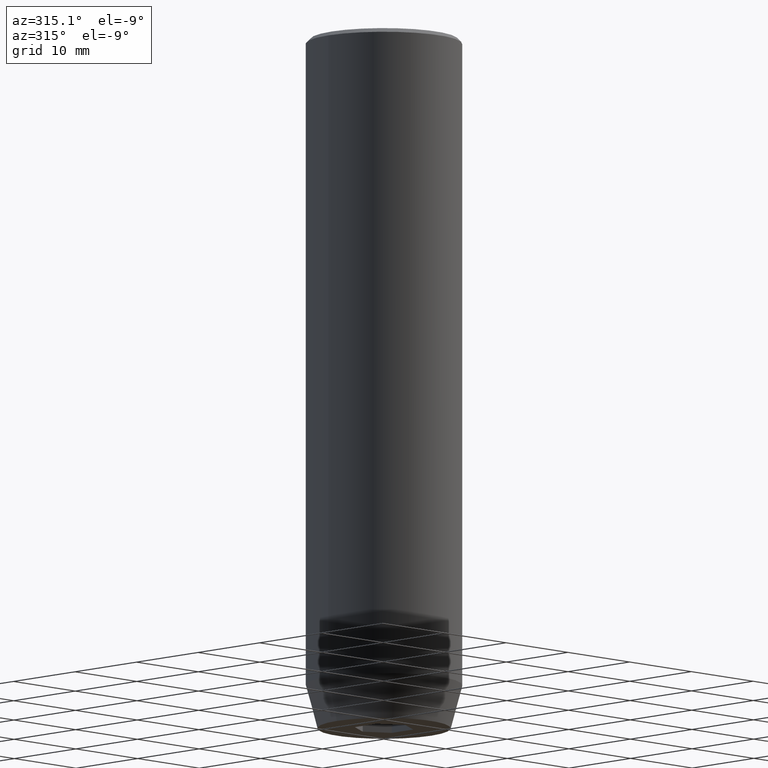
[diagram: clean part render]
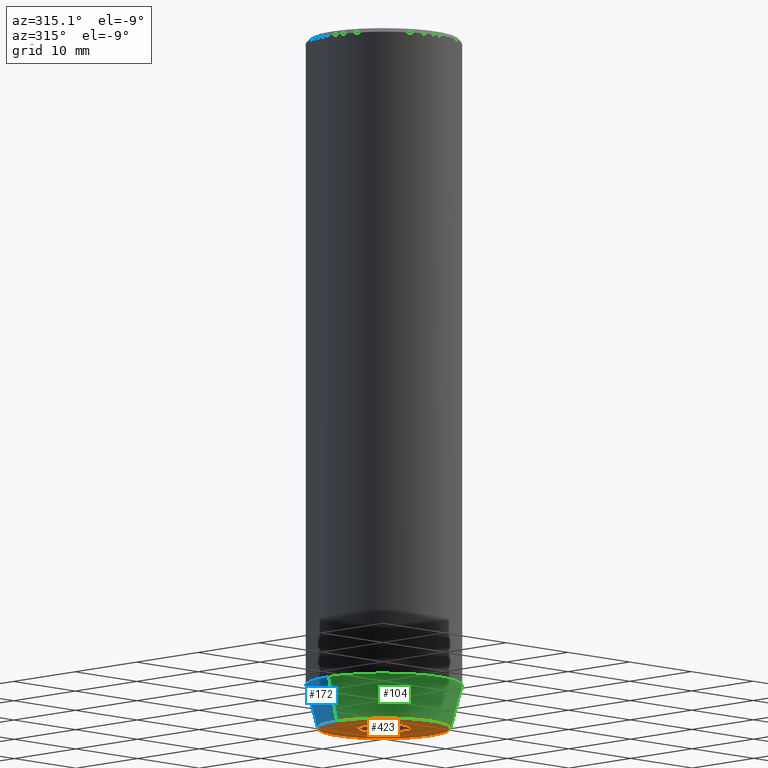
[diagram: same view with three faces highlighted in distinct colors, each labeled with its STEP entity id]
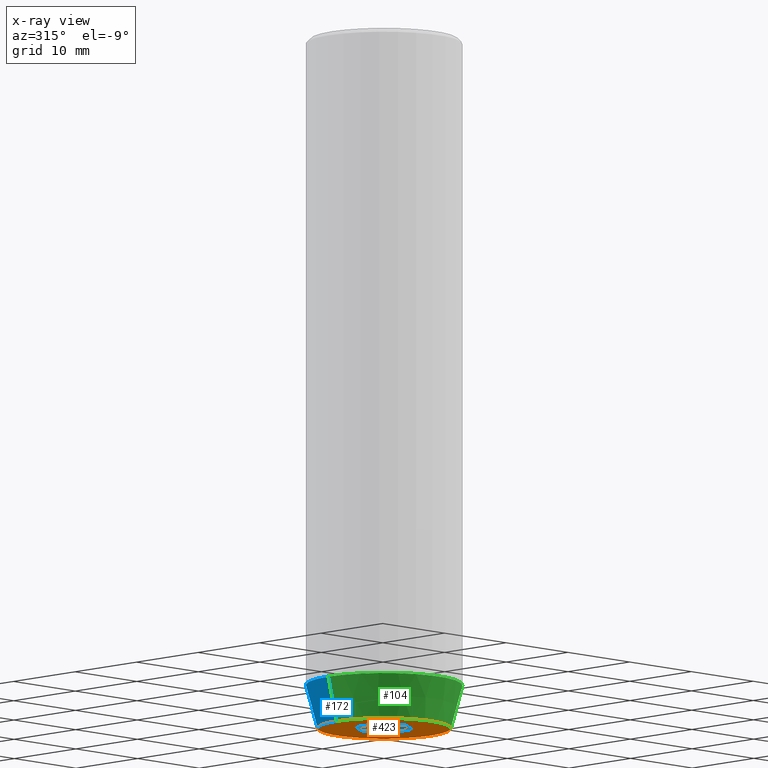
[diagram: x-ray of the same camera — body ghosted, the three highlighted faces saturated]
A machine part, auxiliary view with three faces highlighted in distinct colors.
The next image is the same camera in x-ray (body ghosted, the three faces saturated) — at least one of them is partly hidden behind the body in this view.
Their STEP definitions:

[orange] entity #423 — the highlighted planar face has unit normal (0, 0, -1).
#6 = FACE_OUTER_BOUND ( 'NONE', #194, .T. ) ;
#22 = EDGE_CURVE ( 'NONE', #45, #287, #121, .T. ) ;
#32 = ORIENTED_EDGE ( 'NONE', *, *, #545, .F. ) ;
#34 = CARTESIAN_POINT ( 'NONE',  ( 0.000000000000000000, 0.000000000000000000, -80.00000000000001421 ) ) ;
#35 = VECTOR ( 'NONE', #151, 1000.000000000000000 ) ;
#41 = CARTESIAN_POINT ( 'NONE',  ( -7.660254037844385522, 1.020146339021394469E-15, -80.00000000000001421 ) ) ;
#42 = DIRECTION ( 'NONE',  ( -0.000000000000000000, -0.000000000000000000, 1.000000000000000000 ) ) ;
#45 = VERTEX_POINT ( 'NONE', #405 ) ;
#50 = CARTESIAN_POINT ( 'NONE',  ( -1.499999999999999556, 2.598076211353316012, -80.00000000000001421 ) ) ;
#62 = VECTOR ( 'NONE', #439, 1000.000000000000000 ) ;
#67 = AXIS2_PLACEMENT_3D ( 'NONE', #415, #276, #314 ) ;
#82 = CARTESIAN_POINT ( 'NONE',  ( -1.500000000000000666, -2.598076211353316456, -80.00000000000001421 ) ) ;
#87 = ORIENTED_EDGE ( 'NONE', *, *, #334, .F. ) ;
#102 = CARTESIAN_POINT ( 'NONE',  ( 1.500000000000000222, -2.598076211353315568, -80.00000000000001421 ) ) ;
#106 = EDGE_CURVE ( 'NONE', #287, #45, #323, .T. ) ;
#107 = ORIENTED_EDGE ( 'NONE', *, *, #467, .F. ) ;
#118 = VERTEX_POINT ( 'NONE', #185 ) ;
#121 = CIRCLE ( 'NONE', #455, 7.660254037844385522 ) ;
#136 = DIRECTION ( 'NONE',  ( 0.000000000000000000, 0.000000000000000000, -1.000000000000000000 ) ) ;
#142 = CARTESIAN_POINT ( 'NONE',  ( 0.000000000000000000, 7.660254037844385522, -80.00000000000001421 ) ) ;
#144 = CARTESIAN_POINT ( 'NONE',  ( 0.000000000000000000, 3.464101615137754830, -80.00000000000001421 ) ) ;
#151 = DIRECTION ( 'NONE',  ( -0.8660254037844385966, -0.5000000000000001110, 0.000000000000000000 ) ) ;
#154 = AXIS2_PLACEMENT_3D ( 'NONE', #142, #136, #504 ) ;
#169 = EDGE_LOOP ( 'NONE', ( #332, #32, #388, #574, #107, #87 ) ) ;
#170 = DIRECTION ( 'NONE',  ( -0.8660254037844385966, 0.5000000000000001110, 0.000000000000000000 ) ) ;
#179 = DIRECTION ( 'NONE',  ( 1.000000000000000000, 0.000000000000000000, 0.000000000000000000 ) ) ;
#182 = FACE_BOUND ( 'NONE', #169, .T. ) ;
#183 = LINE ( 'NONE', #50, #298 ) ;
#185 = CARTESIAN_POINT ( 'NONE',  ( -3.000000000000000000, -1.732050807568877859, -80.00000000000001421 ) ) ;
#187 = DIRECTION ( 'NONE',  ( 0.8660254037844387076, 0.4999999999999999445, 0.000000000000000000 ) ) ;
#194 = EDGE_LOOP ( 'NONE', ( #339, #306 ) ) ;
#195 = EDGE_CURVE ( 'NONE', #424, #203, #183, .T. ) ;
#203 = VERTEX_POINT ( 'NONE', #144 ) ;
#242 = LINE ( 'NONE', #102, #35 ) ;
#254 = CARTESIAN_POINT ( 'NONE',  ( 1.500000000000000222, 2.598076211353315568, -80.00000000000001421 ) ) ;
#260 = LINE ( 'NONE', #82, #277 ) ;
#269 = PLANE ( 'NONE',  #154 ) ;
#276 = DIRECTION ( 'NONE',  ( -0.000000000000000000, -0.000000000000000000, 1.000000000000000000 ) ) ;
#277 = VECTOR ( 'NONE', #170, 1000.000000000000000 ) ;
#285 = CARTESIAN_POINT ( 'NONE',  ( 3.000000000000000000, -1.732050807568876527, -80.00000000000001421 ) ) ;
#287 = VERTEX_POINT ( 'NONE', #41 ) ;
#298 = VECTOR ( 'NONE', #187, 999.9999999999998863 ) ;
#303 = VERTEX_POINT ( 'NONE', #448 ) ;
#306 = ORIENTED_EDGE ( 'NONE', *, *, #106, .F. ) ;
#314 = DIRECTION ( 'NONE',  ( 1.000000000000000000, 0.000000000000000000, 0.000000000000000000 ) ) ;
#320 = CARTESIAN_POINT ( 'NONE',  ( 3.000000000000000000, 0.000000000000000000, -80.00000000000001421 ) ) ;
#323 = CIRCLE ( 'NONE', #67, 7.660254037844385522 ) ;
#332 = ORIENTED_EDGE ( 'NONE', *, *, #195, .F. ) ;
#334 = EDGE_CURVE ( 'NONE', #203, #523, #542, .T. ) ;
#339 = ORIENTED_EDGE ( 'NONE', *, *, #22, .F. ) ;
#353 = VECTOR ( 'NONE', #374, 1000.000000000000000 ) ;
#367 = EDGE_CURVE ( 'NONE', #303, #118, #260, .T. ) ;
#368 = CARTESIAN_POINT ( 'NONE',  ( -3.000000000000000888, 1.732050807568876527, -80.00000000000001421 ) ) ;
#374 = DIRECTION ( 'NONE',  ( -2.503857664561932376E-16, 1.000000000000000000, 0.000000000000000000 ) ) ;
#382 = CARTESIAN_POINT ( 'NONE',  ( -3.000000000000000444, -7.511572993685800087E-16, -80.00000000000001421 ) ) ;
#388 = ORIENTED_EDGE ( 'NONE', *, *, #367, .F. ) ;
#405 = CARTESIAN_POINT ( 'NONE',  ( 7.660254037844385522, 0.000000000000000000, -80.00000000000001421 ) ) ;
#411 = LINE ( 'NONE', #320, #564 ) ;
#415 = CARTESIAN_POINT ( 'NONE',  ( 0.000000000000000000, 0.000000000000000000, -80.00000000000001421 ) ) ;
#423 = ADVANCED_FACE ( 'NONE', ( #182, #6 ), #269, .T. ) ;
#424 = VERTEX_POINT ( 'NONE', #368 ) ;
#439 = DIRECTION ( 'NONE',  ( 0.8660254037844385966, -0.5000000000000001110, 0.000000000000000000 ) ) ;
#448 = CARTESIAN_POINT ( 'NONE',  ( -2.168404344971008868E-16, -3.464101615137754830, -80.00000000000001421 ) ) ;
#455 = AXIS2_PLACEMENT_3D ( 'NONE', #34, #42, #179 ) ;
#465 = LINE ( 'NONE', #382, #353 ) ;
#467 = EDGE_CURVE ( 'NONE', #523, #543, #411, .T. ) ;
#504 = DIRECTION ( 'NONE',  ( -1.000000000000000000, 0.000000000000000000, -0.000000000000000000 ) ) ;
#523 = VERTEX_POINT ( 'NONE', #558 ) ;
#542 = LINE ( 'NONE', #254, #62 ) ;
#543 = VERTEX_POINT ( 'NONE', #285 ) ;
#544 = DIRECTION ( 'NONE',  ( 0.000000000000000000, -1.000000000000000000, 0.000000000000000000 ) ) ;
#545 = EDGE_CURVE ( 'NONE', #118, #424, #465, .T. ) ;
#558 = CARTESIAN_POINT ( 'NONE',  ( 3.000000000000000000, 1.732050807568876527, -80.00000000000001421 ) ) ;
#564 = VECTOR ( 'NONE', #544, 1000.000000000000000 ) ;
#566 = EDGE_CURVE ( 'NONE', #543, #303, #242, .T. ) ;
#574 = ORIENTED_EDGE ( 'NONE', *, *, #566, .F. ) ;

[blue] entity #172 — the highlighted conical surface has half-angle 15 deg.
#7 = CARTESIAN_POINT ( 'NONE',  ( -9.000000000000000000, 1.102182119232617714E-15, -75.00000000000001421 ) ) ;
#22 = EDGE_CURVE ( 'NONE', #45, #287, #121, .T. ) ;
#34 = CARTESIAN_POINT ( 'NONE',  ( 0.000000000000000000, 0.000000000000000000, -80.00000000000001421 ) ) ;
#41 = CARTESIAN_POINT ( 'NONE',  ( -7.660254037844385522, 1.020146339021394469E-15, -80.00000000000001421 ) ) ;
#42 = DIRECTION ( 'NONE',  ( -0.000000000000000000, -0.000000000000000000, 1.000000000000000000 ) ) ;
#45 = VERTEX_POINT ( 'NONE', #405 ) ;
#49 = DIRECTION ( 'NONE',  ( 1.000000000000000000, 0.000000000000000000, 0.000000000000000000 ) ) ;
#75 = LINE ( 'NONE', #216, #451 ) ;
#79 = DIRECTION ( 'NONE',  ( 0.2588190451025205729, 0.000000000000000000, 0.9659258262890683122 ) ) ;
#88 = LINE ( 'NONE', #7, #140 ) ;
#111 = EDGE_LOOP ( 'NONE', ( #518, #114, #241, #292 ) ) ;
#112 = VERTEX_POINT ( 'NONE', #553 ) ;
#114 = ORIENTED_EDGE ( 'NONE', *, *, #134, .T. ) ;
#121 = CIRCLE ( 'NONE', #455, 7.660254037844385522 ) ;
#134 = EDGE_CURVE ( 'NONE', #287, #394, #88, .T. ) ;
#139 = CARTESIAN_POINT ( 'NONE',  ( 0.000000000000000000, 0.000000000000000000, -75.00000000000001421 ) ) ;
#140 = VECTOR ( 'NONE', #559, 1000.000000000000114 ) ;
#162 = CONICAL_SURFACE ( 'NONE', #501, 9.000000000000000000, 0.2617993877991492413 ) ;
#172 = ADVANCED_FACE ( 'NONE', ( #454 ), #162, .T. ) ;
#177 = CARTESIAN_POINT ( 'NONE',  ( -9.000000000000000000, 1.102182119232617714E-15, -75.00000000000001421 ) ) ;
#178 = EDGE_CURVE ( 'NONE', #112, #394, #418, .T. ) ;
#179 = DIRECTION ( 'NONE',  ( 1.000000000000000000, 0.000000000000000000, 0.000000000000000000 ) ) ;
#216 = CARTESIAN_POINT ( 'NONE',  ( 9.000000000000000000, 0.000000000000000000, -75.00000000000001421 ) ) ;
#226 = AXIS2_PLACEMENT_3D ( 'NONE', #139, #322, #49 ) ;
#231 = DIRECTION ( 'NONE',  ( -0.000000000000000000, -0.000000000000000000, 1.000000000000000000 ) ) ;
#241 = ORIENTED_EDGE ( 'NONE', *, *, #178, .F. ) ;
#268 = CARTESIAN_POINT ( 'NONE',  ( 0.000000000000000000, 0.000000000000000000, -75.00000000000001421 ) ) ;
#287 = VERTEX_POINT ( 'NONE', #41 ) ;
#292 = ORIENTED_EDGE ( 'NONE', *, *, #327, .F. ) ;
#322 = DIRECTION ( 'NONE',  ( -0.000000000000000000, -0.000000000000000000, 1.000000000000000000 ) ) ;
#327 = EDGE_CURVE ( 'NONE', #45, #112, #75, .T. ) ;
#369 = DIRECTION ( 'NONE',  ( 1.000000000000000000, 0.000000000000000000, 0.000000000000000000 ) ) ;
#394 = VERTEX_POINT ( 'NONE', #177 ) ;
#405 = CARTESIAN_POINT ( 'NONE',  ( 7.660254037844385522, 0.000000000000000000, -80.00000000000001421 ) ) ;
#418 = CIRCLE ( 'NONE', #226, 9.000000000000000000 ) ;
#451 = VECTOR ( 'NONE', #79, 1000.000000000000114 ) ;
#454 = FACE_OUTER_BOUND ( 'NONE', #111, .T. ) ;
#455 = AXIS2_PLACEMENT_3D ( 'NONE', #34, #42, #179 ) ;
#501 = AXIS2_PLACEMENT_3D ( 'NONE', #268, #231, #369 ) ;
#518 = ORIENTED_EDGE ( 'NONE', *, *, #22, .T. ) ;
#553 = CARTESIAN_POINT ( 'NONE',  ( 9.000000000000000000, 0.000000000000000000, -75.00000000000001421 ) ) ;
#559 = DIRECTION ( 'NONE',  ( -0.2588190451025205729, 3.169619151431761860E-17, 0.9659258262890683122 ) ) ;

[green] entity #104 — the highlighted conical surface has half-angle 15 deg.
#7 = CARTESIAN_POINT ( 'NONE',  ( -9.000000000000000000, 1.102182119232617714E-15, -75.00000000000001421 ) ) ;
#36 = AXIS2_PLACEMENT_3D ( 'NONE', #385, #199, #470 ) ;
#41 = CARTESIAN_POINT ( 'NONE',  ( -7.660254037844385522, 1.020146339021394469E-15, -80.00000000000001421 ) ) ;
#45 = VERTEX_POINT ( 'NONE', #405 ) ;
#67 = AXIS2_PLACEMENT_3D ( 'NONE', #415, #276, #314 ) ;
#75 = LINE ( 'NONE', #216, #451 ) ;
#79 = DIRECTION ( 'NONE',  ( 0.2588190451025205729, 0.000000000000000000, 0.9659258262890683122 ) ) ;
#88 = LINE ( 'NONE', #7, #140 ) ;
#97 = CIRCLE ( 'NONE', #36, 9.000000000000000000 ) ;
#104 = ADVANCED_FACE ( 'NONE', ( #227 ), #362, .T. ) ;
#106 = EDGE_CURVE ( 'NONE', #287, #45, #323, .T. ) ;
#112 = VERTEX_POINT ( 'NONE', #553 ) ;
#134 = EDGE_CURVE ( 'NONE', #287, #394, #88, .T. ) ;
#140 = VECTOR ( 'NONE', #559, 1000.000000000000114 ) ;
#177 = CARTESIAN_POINT ( 'NONE',  ( -9.000000000000000000, 1.102182119232617714E-15, -75.00000000000001421 ) ) ;
#199 = DIRECTION ( 'NONE',  ( -0.000000000000000000, -0.000000000000000000, 1.000000000000000000 ) ) ;
#216 = CARTESIAN_POINT ( 'NONE',  ( 9.000000000000000000, 0.000000000000000000, -75.00000000000001421 ) ) ;
#227 = FACE_OUTER_BOUND ( 'NONE', #533, .T. ) ;
#276 = DIRECTION ( 'NONE',  ( -0.000000000000000000, -0.000000000000000000, 1.000000000000000000 ) ) ;
#287 = VERTEX_POINT ( 'NONE', #41 ) ;
#300 = ORIENTED_EDGE ( 'NONE', *, *, #134, .F. ) ;
#314 = DIRECTION ( 'NONE',  ( 1.000000000000000000, 0.000000000000000000, 0.000000000000000000 ) ) ;
#323 = CIRCLE ( 'NONE', #67, 7.660254037844385522 ) ;
#327 = EDGE_CURVE ( 'NONE', #45, #112, #75, .T. ) ;
#362 = CONICAL_SURFACE ( 'NONE', #579, 9.000000000000000000, 0.2617993877991492413 ) ;
#376 = DIRECTION ( 'NONE',  ( -0.000000000000000000, -0.000000000000000000, 1.000000000000000000 ) ) ;
#385 = CARTESIAN_POINT ( 'NONE',  ( 0.000000000000000000, 0.000000000000000000, -75.00000000000001421 ) ) ;
#394 = VERTEX_POINT ( 'NONE', #177 ) ;
#405 = CARTESIAN_POINT ( 'NONE',  ( 7.660254037844385522, 0.000000000000000000, -80.00000000000001421 ) ) ;
#409 = CARTESIAN_POINT ( 'NONE',  ( 0.000000000000000000, 0.000000000000000000, -75.00000000000001421 ) ) ;
#415 = CARTESIAN_POINT ( 'NONE',  ( 0.000000000000000000, 0.000000000000000000, -80.00000000000001421 ) ) ;
#451 = VECTOR ( 'NONE', #79, 1000.000000000000114 ) ;
#464 = DIRECTION ( 'NONE',  ( 1.000000000000000000, 0.000000000000000000, 0.000000000000000000 ) ) ;
#470 = DIRECTION ( 'NONE',  ( 1.000000000000000000, 0.000000000000000000, 0.000000000000000000 ) ) ;
#478 = ORIENTED_EDGE ( 'NONE', *, *, #327, .T. ) ;
#530 = ORIENTED_EDGE ( 'NONE', *, *, #106, .T. ) ;
#533 = EDGE_LOOP ( 'NONE', ( #300, #530, #478, #562 ) ) ;
#551 = EDGE_CURVE ( 'NONE', #394, #112, #97, .T. ) ;
#553 = CARTESIAN_POINT ( 'NONE',  ( 9.000000000000000000, 0.000000000000000000, -75.00000000000001421 ) ) ;
#559 = DIRECTION ( 'NONE',  ( -0.2588190451025205729, 3.169619151431761860E-17, 0.9659258262890683122 ) ) ;
#562 = ORIENTED_EDGE ( 'NONE', *, *, #551, .F. ) ;
#579 = AXIS2_PLACEMENT_3D ( 'NONE', #409, #376, #464 ) ;